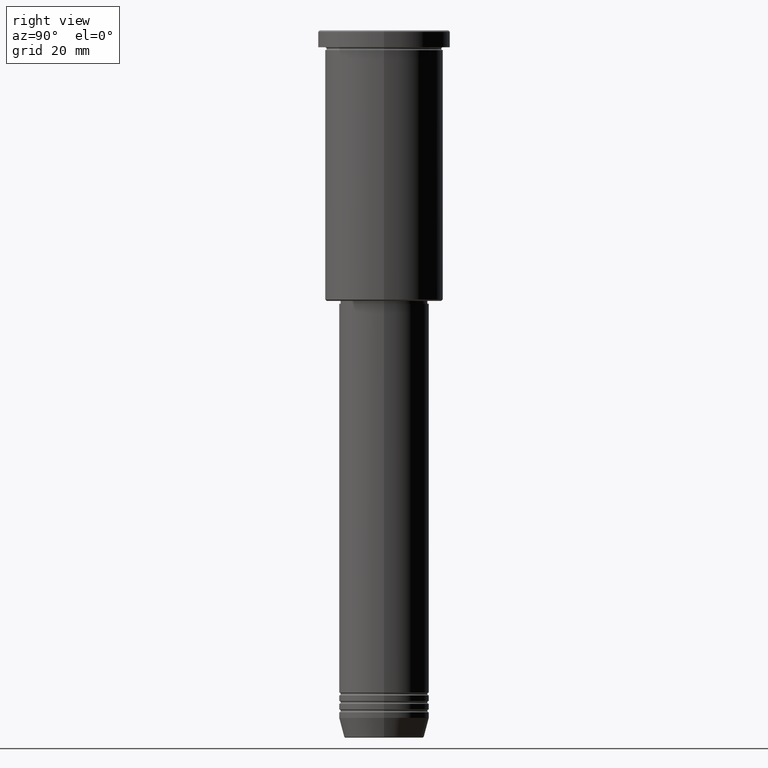
[diagram: clean part render]
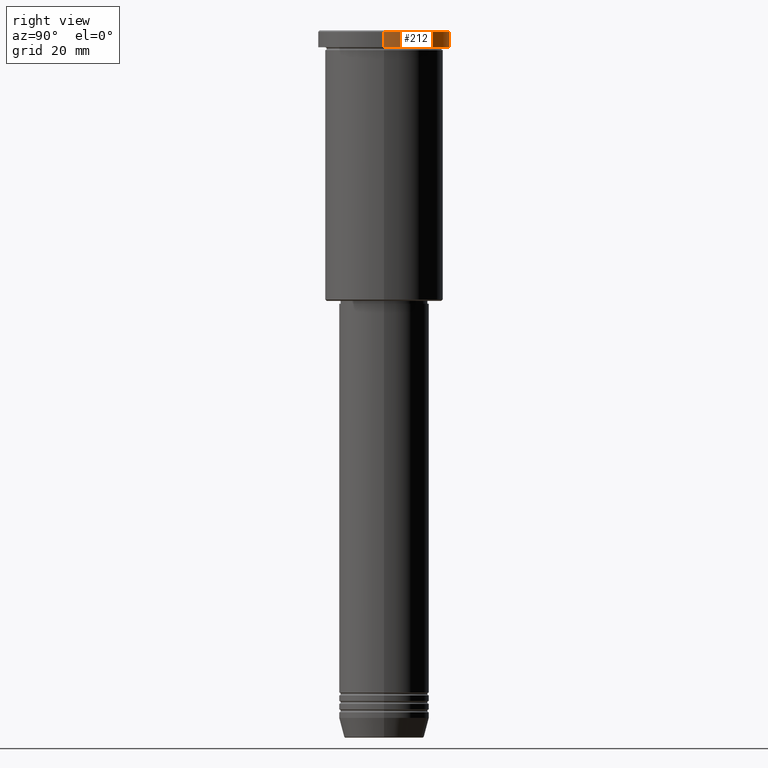
[diagram: same view with one face highlighted and labeled with its STEP entity id]
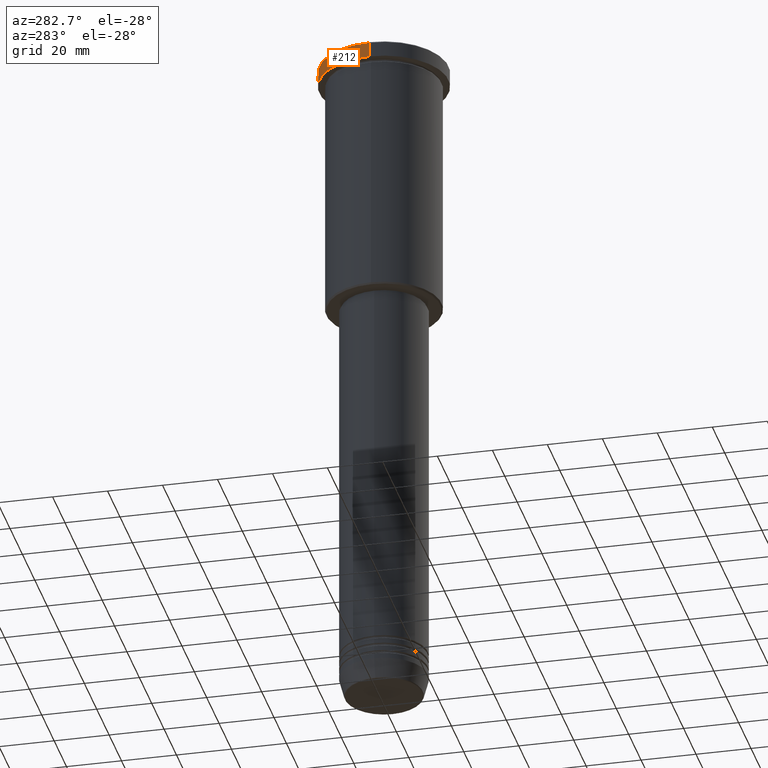
[diagram: same view with one face highlighted and labeled with its STEP entity id]
A machine part, right view. The second image highlights one B-rep face of the part: STEP entity #212.
A second angle (auxiliary view) of the same face is appended — the face is thin or edge-on in the first view.
In plain terms, the highlighted cylindrical surface (partial cylindrical patch) has radius 23.5 mm, axis along (-0, -0, 1).
Its self-contained STEP definition (entity closure, byte-faithful):
#28 = VERTEX_POINT ( 'NONE', #1180 ) ;
#125 = LINE ( 'NONE', #596, #522 ) ;
#133 = DIRECTION ( 'NONE',  ( -0.000000000000000000, -0.000000000000000000, 1.000000000000000000 ) ) ;
#146 = DIRECTION ( 'NONE',  ( -0.000000000000000000, -0.000000000000000000, 1.000000000000000000 ) ) ;
#149 = CARTESIAN_POINT ( 'NONE',  ( 0.000000000000000000, 0.000000000000000000, -5.999999999999994671 ) ) ;
#153 = DIRECTION ( 'NONE',  ( 1.000000000000000000, 0.000000000000000000, 0.000000000000000000 ) ) ;
#189 = CIRCLE ( 'NONE', #914, 23.50000000000000000 ) ;
#212 = ADVANCED_FACE ( 'NONE', ( #323 ), #1139, .T. ) ;
#219 = DIRECTION ( 'NONE',  ( -0.000000000000000000, -0.000000000000000000, 1.000000000000000000 ) ) ;
#253 = VERTEX_POINT ( 'NONE', #1041 ) ;
#276 = EDGE_CURVE ( 'NONE', #533, #253, #125, .T. ) ;
#323 = FACE_OUTER_BOUND ( 'NONE', #589, .T. ) ;
#448 = EDGE_CURVE ( 'NONE', #253, #28, #788, .T. ) ;
#505 = DIRECTION ( 'NONE',  ( -0.000000000000000000, -0.000000000000000000, 1.000000000000000000 ) ) ;
#522 = VECTOR ( 'NONE', #146, 1000.000000000000000 ) ;
#527 = VECTOR ( 'NONE', #505, 1000.000000000000000 ) ;
#530 = ORIENTED_EDGE ( 'NONE', *, *, #448, .T. ) ;
#533 = VERTEX_POINT ( 'NONE', #827 ) ;
#567 = ORIENTED_EDGE ( 'NONE', *, *, #1156, .F. ) ;
#589 = EDGE_LOOP ( 'NONE', ( #878, #617, #530, #567 ) ) ;
#596 = CARTESIAN_POINT ( 'NONE',  ( -23.50000000000000000, 2.877919977996280320E-15, 0.000000000000000000 ) ) ;
#606 = CARTESIAN_POINT ( 'NONE',  ( 23.50000000000000000, 0.000000000000000000, -5.999999999999994671 ) ) ;
#617 = ORIENTED_EDGE ( 'NONE', *, *, #276, .T. ) ;
#620 = AXIS2_PLACEMENT_3D ( 'NONE', #973, #697, #153 ) ;
#690 = DIRECTION ( 'NONE',  ( 1.000000000000000000, 0.000000000000000000, 0.000000000000000000 ) ) ;
#697 = DIRECTION ( 'NONE',  ( 0.000000000000000000, 0.000000000000000000, -1.000000000000000000 ) ) ;
#788 = CIRCLE ( 'NONE', #620, 23.50000000000000000 ) ;
#827 = CARTESIAN_POINT ( 'NONE',  ( -23.50000000000000000, 2.877919977996280320E-15, -5.999999999999994671 ) ) ;
#878 = ORIENTED_EDGE ( 'NONE', *, *, #1170, .T. ) ;
#914 = AXIS2_PLACEMENT_3D ( 'NONE', #149, #219, #690 ) ;
#928 = AXIS2_PLACEMENT_3D ( 'NONE', #953, #133, #1126 ) ;
#953 = CARTESIAN_POINT ( 'NONE',  ( 0.000000000000000000, 0.000000000000000000, 0.000000000000000000 ) ) ;
#966 = CARTESIAN_POINT ( 'NONE',  ( 23.50000000000000000, 0.000000000000000000, 0.000000000000000000 ) ) ;
#973 = CARTESIAN_POINT ( 'NONE',  ( 0.000000000000000000, 0.000000000000000000, -0.4999999999999726885 ) ) ;
#1038 = LINE ( 'NONE', #966, #527 ) ;
#1041 = CARTESIAN_POINT ( 'NONE',  ( -23.50000000000000000, 2.877919977996280320E-15, -0.4999999999999726885 ) ) ;
#1126 = DIRECTION ( 'NONE',  ( 1.000000000000000000, 0.000000000000000000, 0.000000000000000000 ) ) ;
#1132 = VERTEX_POINT ( 'NONE', #606 ) ;
#1139 = CYLINDRICAL_SURFACE ( 'NONE', #928, 23.50000000000000000 ) ;
#1156 = EDGE_CURVE ( 'NONE', #1132, #28, #1038, .T. ) ;
#1170 = EDGE_CURVE ( 'NONE', #1132, #533, #189, .T. ) ;
#1180 = CARTESIAN_POINT ( 'NONE',  ( 23.50000000000000000, 0.000000000000000000, -0.4999999999999726885 ) ) ;